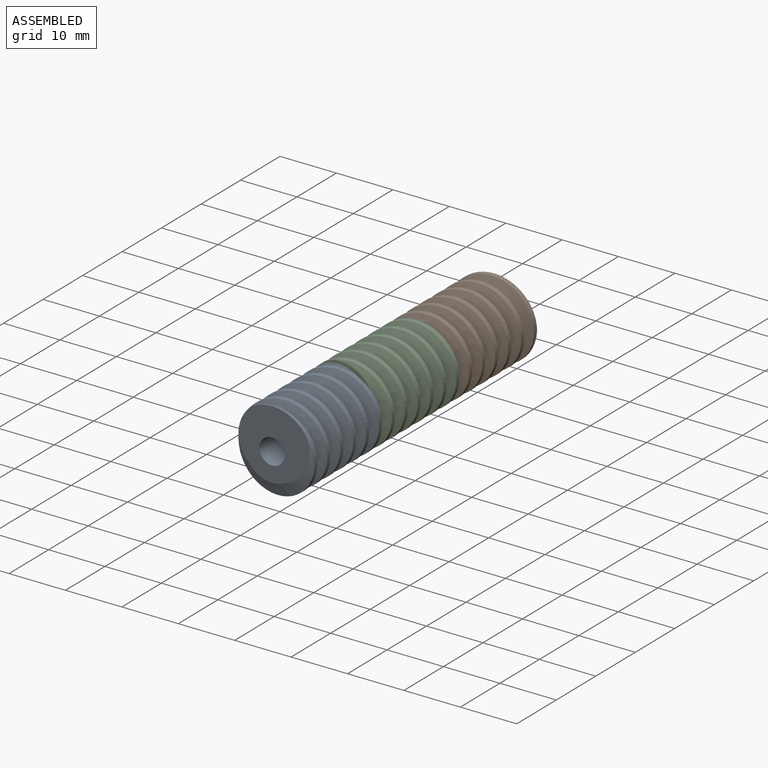
[diagram: assembled view]
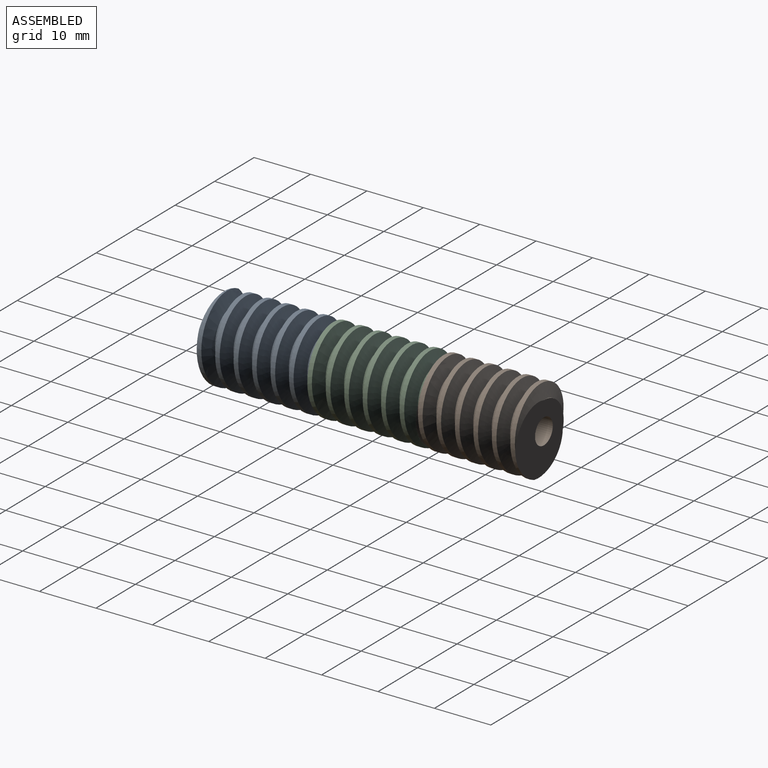
[diagram: assembled view, second angle]
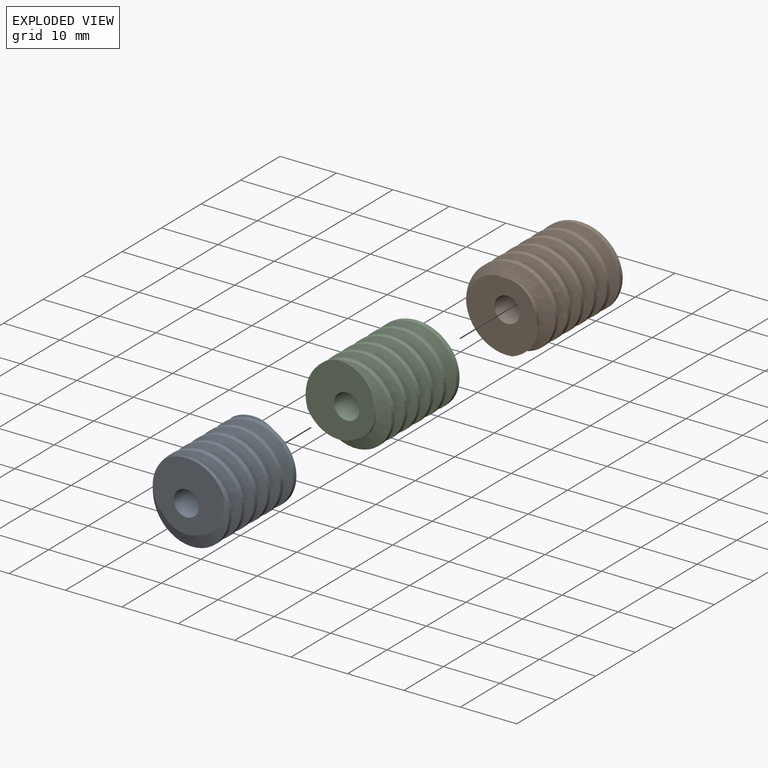
[diagram: exploded view]
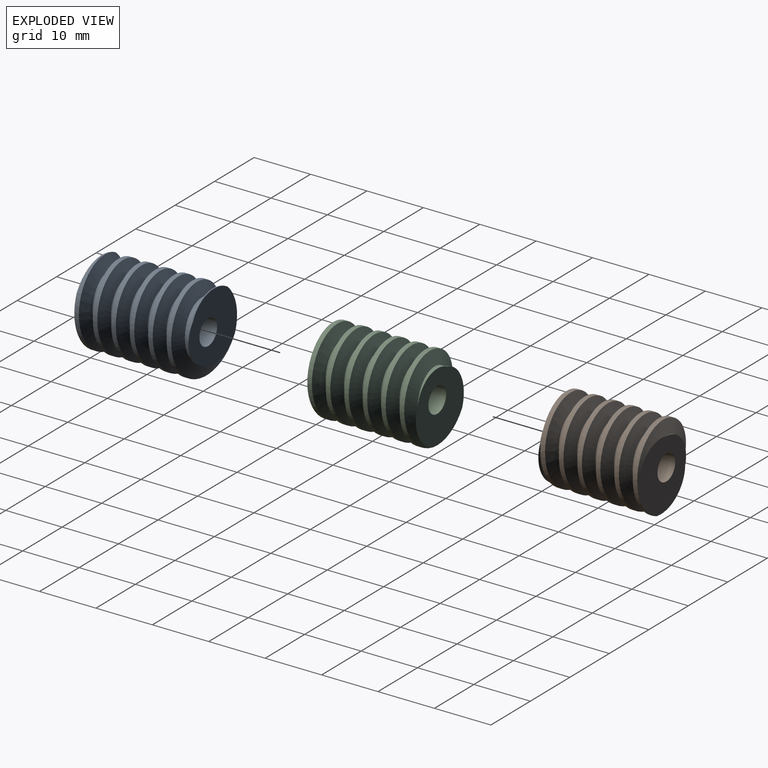
[diagram: exploded view, second angle]
ASSEMBLY  parts=3 mates=2
PART A: 15 faces, bbox 16.3x21.5x16.4 mm
  f0: cylinder r=2.24mm len=18.9mm, axis (0,-1,0), area 266.5mm2, adj f1,f2
  f1: plane 13.2x13.06mm, normal (0,1,0), area 100.8mm2, adj f0,f3,f4,f5,f6,f14
  f2: plane 13.19x12.83mm, normal (0,-1,0), area 105.9mm2, adj f0,f7,f8,f9,f14
  f3: bspline ~10.19x10.18mm, area 41.5mm2, adj f1,f4,f5,f10,f11
  f4: cylinder r=5mm len=1.56mm, axis (0,1,0), area 0.2mm2, adj f1,f3,f6
  f5: bspline ~14.96x14.9mm, area 182.7mm2, adj f1,f3,f12,f14
  f6: bspline ~8.75x3.26mm, area 1.9mm2, adj f1,f4,f11,f14
  f7: bspline ~15.03x14.99mm, area 94.3mm2, adj f2,f9,f12,f14
  f8: bspline ~14.81x14.81mm, area 142.7mm2, adj f2,f9,f13,f14
  f9: bspline ~10.44x10.4mm, area 31.1mm2, adj f2,f7,f8,f10
  f10: bspline ~10.57x10.55mm, area 70.8mm2, adj f3,f9,f12,f13
  f11: bspline ~15.51x15.05mm, area 128.9mm2, adj f3,f6,f13,f14
  f12: bspline ~15.42x15.4mm, area 284.9mm2, adj f5,f7,f10,f14
  f13: bspline ~15.42x15.4mm, area 269.6mm2, adj f8,f10,f11,f14
  f14: cylinder r=7.29mm len=18.9mm, axis (0,1,0), area 162.4mm2, adj f1,f2,f5,f6,f7,f8,f11,f12
PART B: same geometry as A
PART C: same geometry as A
PLACE A t=(17.33,-18.17,0.27)mm fixed
PLACE B rot(axis=(0,-1,0),157.6deg) t=(17.33,19.63,0.27)mm
PLACE C rot(axis=(0,-1,0),77.6deg) t=(17.33,0.73,0.27)mm
MATE revolute C.f0 <-> A.f0  axis (0,-1,0) through (17.33,0.73,0.27)mm
MATE revolute B.f0 <-> C.f0  axis (0,-1,0) through (17.33,19.63,0.27)mm
